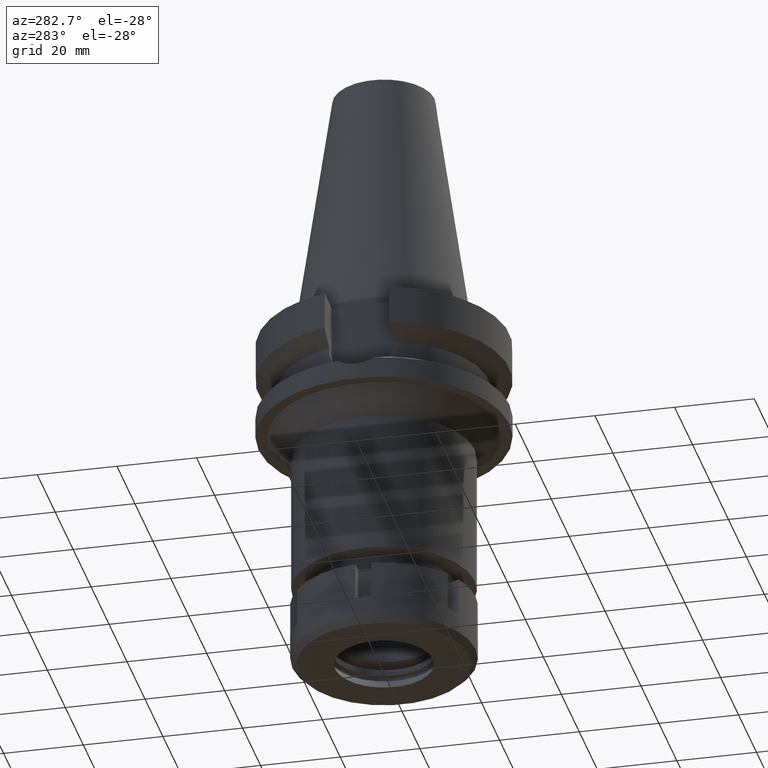
[diagram: clean part render]
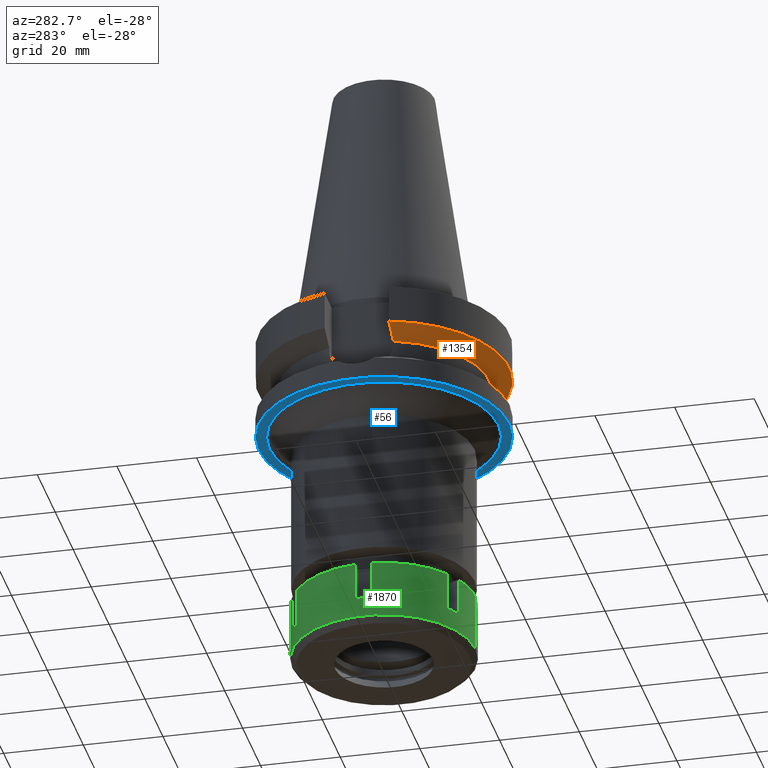
[diagram: same view with three faces highlighted in distinct colors, each labeled with its STEP entity id]
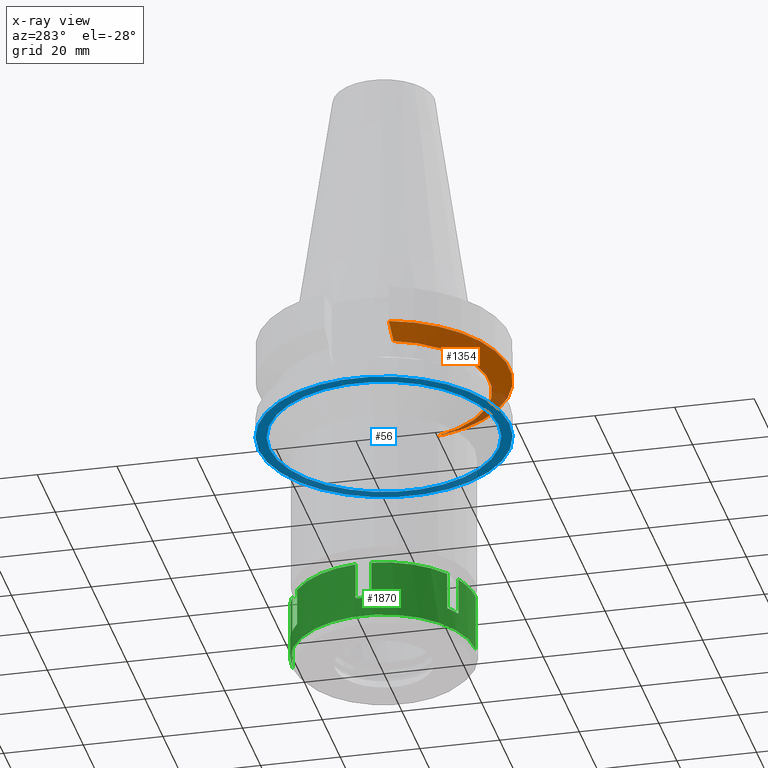
[diagram: x-ray of the same camera — body ghosted, the three highlighted faces saturated]
A machine part, auxiliary view with three faces highlighted in distinct colors.
The next image is the same camera in x-ray (body ghosted, the three faces saturated) — at least one of them is partly hidden behind the body in this view.
Their STEP definitions:

[orange] entity #1354 — the highlighted conical surface has half-angle 60 deg.
#33 = VERTEX_POINT ( 'NONE', #2276 ) ;
#57 = CARTESIAN_POINT ( 'NONE',  ( 30.45402272279000044, -8.049999999999000622, -11.56550565266999975 ) ) ;
#192 = CARTESIAN_POINT ( 'NONE',  ( -25.24772413243999836, -8.049995411938999368, -14.45229205738999845 ) ) ;
#216 = CIRCLE ( 'NONE', #2206, 31.50000000000000000 ) ;
#324 = CARTESIAN_POINT ( 'NONE',  ( 25.24772266958000344, -8.050000000000000711, -14.45225699861000024 ) ) ;
#397 = DIRECTION ( 'NONE',  ( 0.0000000000000000000, -1.000000000000000000, 0.0000000000000000000 ) ) ;
#398 = CIRCLE ( 'NONE', #452, 26.50000000000000711 ) ;
#402 = CARTESIAN_POINT ( 'NONE',  ( 0.0000000000000000000, 1.065333950388000029E-14, -13.00888132564000088 ) ) ;
#452 = AXIS2_PLACEMENT_3D ( 'NONE', #2230, #1123, #1888 ) ;
#638 = EDGE_CURVE ( 'NONE', #33, #652, #216, .T. ) ;
#652 = VERTEX_POINT ( 'NONE', #1758 ) ;
#745 = B_SPLINE_CURVE_WITH_KNOTS ( 'NONE', 3,
 ( #324, #2498, #1104, #57 ),
 .UNSPECIFIED., .F., .F.,
 ( 4, 4 ),
 ( 0.0000000000000000000, 1.000000000000000000 ),
 .UNSPECIFIED. ) ;
#767 = ORIENTED_EDGE ( 'NONE', *, *, #1991, .T. ) ;
#870 = VERTEX_POINT ( 'NONE', #2867 ) ;
#899 = FACE_OUTER_BOUND ( 'NONE', #3270, .T. ) ;
#1092 = EDGE_CURVE ( 'NONE', #1648, #652, #745, .T. ) ;
#1104 = CARTESIAN_POINT ( 'NONE',  ( 28.57294939171208625, -8.050008288737513951, -12.61547997194311499 ) ) ;
#1123 = DIRECTION ( 'NONE',  ( 0.0000000000000000000, 0.0000000000000000000, -1.000000000000000000 ) ) ;
#1189 = EDGE_CURVE ( 'NONE', #1648, #870, #398, .T. ) ;
#1354 = ADVANCED_FACE ( 'NONE', ( #899 ), #3305, .T. ) ;
#1421 = B_SPLINE_CURVE_WITH_KNOTS ( 'NONE', 3,
 ( #2335, #1574, #2938, #192 ),
 .UNSPECIFIED., .F., .F.,
 ( 4, 4 ),
 ( 0.0000000000000000000, 1.000000000000000000 ),
 .UNSPECIFIED. ) ;
#1470 = AXIS2_PLACEMENT_3D ( 'NONE', #402, #2271, #3349 ) ;
#1574 = CARTESIAN_POINT ( 'NONE',  ( -28.57292324736876310, -8.049998554312644217, -12.61549607974548515 ) ) ;
#1648 = VERTEX_POINT ( 'NONE', #2874 ) ;
#1758 = CARTESIAN_POINT ( 'NONE',  ( 30.45402272279000044, -8.049999999999000622, -11.56550565266999975 ) ) ;
#1879 = ORIENTED_EDGE ( 'NONE', *, *, #638, .F. ) ;
#1888 = DIRECTION ( 'NONE',  ( 0.9527442516822307583, -0.3037735849057093818, 0.0000000000000000000 ) ) ;
#1991 = EDGE_CURVE ( 'NONE', #33, #870, #1421, .T. ) ;
#2029 = CARTESIAN_POINT ( 'NONE',  ( 0.0000000000000000000, 1.065333950388000029E-14, -11.56550565266999975 ) ) ;
#2206 = AXIS2_PLACEMENT_3D ( 'NONE', #2029, #3364, #397 ) ;
#2230 = CARTESIAN_POINT ( 'NONE',  ( 0.0000000000000000000, 1.065333950388000029E-14, -14.45225699861000024 ) ) ;
#2271 = DIRECTION ( 'NONE',  ( 0.0000000000000000000, 0.0000000000000000000, 1.000000000000000000 ) ) ;
#2276 = CARTESIAN_POINT ( 'NONE',  ( -30.45402291398000116, -8.049999276686000016, -11.56551216739999965 ) ) ;
#2335 = CARTESIAN_POINT ( 'NONE',  ( -30.45402291398000116, -8.049999276686000016, -11.56551216739999965 ) ) ;
#2498 = CARTESIAN_POINT ( 'NONE',  ( 26.83757717483267413, -8.050003168525861952, -13.57772972348226936 ) ) ;
#2573 = ORIENTED_EDGE ( 'NONE', *, *, #1189, .F. ) ;
#2867 = CARTESIAN_POINT ( 'NONE',  ( -25.24772413243999836, -8.049995411938999368, -14.45229205738999845 ) ) ;
#2874 = CARTESIAN_POINT ( 'NONE',  ( 25.24772266958000344, -8.050000000000000711, -14.45225699861000024 ) ) ;
#2938 = CARTESIAN_POINT ( 'NONE',  ( -26.83754611517465705, -8.049990813718032712, -13.57774890706494908 ) ) ;
#2998 = ORIENTED_EDGE ( 'NONE', *, *, #1092, .T. ) ;
#3270 = EDGE_LOOP ( 'NONE', ( #767, #2573, #2998, #1879 ) ) ;
#3305 = CONICAL_SURFACE ( 'NONE', #1470, 29.00000000000000000, 1.047197551196400456 ) ;
#3349 = DIRECTION ( 'NONE',  ( 0.0000000000000000000, 1.000000000000000000, 0.0000000000000000000 ) ) ;
#3364 = DIRECTION ( 'NONE',  ( 0.0000000000000000000, 0.0000000000000000000, 1.000000000000000000 ) ) ;

[blue] entity #56 — the highlighted planar face has unit normal (0, 0, -1).
#56 = ADVANCED_FACE ( 'NONE', ( #2873, #2234 ), #978, .T. ) ;
#67 = DIRECTION ( 'NONE',  ( 0.0000000000000000000, 1.000000000000000000, 0.0000000000000000000 ) ) ;
#79 = EDGE_LOOP ( 'NONE', ( #2676, #2907 ) ) ;
#254 = AXIS2_PLACEMENT_3D ( 'NONE', #2681, #797, #3259 ) ;
#328 = CARTESIAN_POINT ( 'NONE',  ( 0.0000000000000000000, 0.0000000000000000000, -27.00000000000000000 ) ) ;
#345 = DIRECTION ( 'NONE',  ( 0.0000000000000000000, 0.0000000000000000000, -1.000000000000000000 ) ) ;
#393 = VERTEX_POINT ( 'NONE', #2471 ) ;
#694 = VERTEX_POINT ( 'NONE', #2616 ) ;
#797 = DIRECTION ( 'NONE',  ( 0.0000000000000000000, 0.0000000000000000000, 1.000000000000000000 ) ) ;
#918 = CARTESIAN_POINT ( 'NONE',  ( 0.0000000000000000000, 31.50000000000000000, -27.00000000000000000 ) ) ;
#942 = DIRECTION ( 'NONE',  ( 0.0000000000000000000, 0.0000000000000000000, -1.000000000000000000 ) ) ;
#978 = PLANE ( 'NONE',  #2429 ) ;
#1136 = EDGE_LOOP ( 'NONE', ( #3450, #3515 ) ) ;
#1159 = DIRECTION ( 'NONE',  ( 0.0000000000000000000, -1.000000000000000000, 0.0000000000000000000 ) ) ;
#1229 = AXIS2_PLACEMENT_3D ( 'NONE', #2286, #942, #67 ) ;
#1267 = AXIS2_PLACEMENT_3D ( 'NONE', #3333, #345, #1159 ) ;
#1710 = DIRECTION ( 'NONE',  ( 0.0000000000000000000, 0.0000000000000000000, -1.000000000000000000 ) ) ;
#1768 = CARTESIAN_POINT ( 'NONE',  ( 0.0000000000000000000, 2.115822274886999895E-14, -27.00000000000000000 ) ) ;
#1830 = EDGE_CURVE ( 'NONE', #2980, #694, #1856, .T. ) ;
#1840 = CIRCLE ( 'NONE', #254, 31.50000000000000000 ) ;
#1856 = CIRCLE ( 'NONE', #1229, 28.75000000000000000 ) ;
#2020 = CIRCLE ( 'NONE', #1267, 28.75000000000000000 ) ;
#2234 = FACE_BOUND ( 'NONE', #1136, .T. ) ;
#2286 = CARTESIAN_POINT ( 'NONE',  ( 0.0000000000000000000, 0.0000000000000000000, -27.00000000000000000 ) ) ;
#2429 = AXIS2_PLACEMENT_3D ( 'NONE', #328, #1710, #2811 ) ;
#2466 = EDGE_CURVE ( 'NONE', #3506, #393, #2644, .T. ) ;
#2471 = CARTESIAN_POINT ( 'NONE',  ( 0.0000000000000000000, -31.50000000000000000, -27.00000000000000000 ) ) ;
#2616 = CARTESIAN_POINT ( 'NONE',  ( 0.0000000000000000000, -28.75000000000000000, -27.00000000000000000 ) ) ;
#2644 = CIRCLE ( 'NONE', #3447, 31.50000000000000000 ) ;
#2676 = ORIENTED_EDGE ( 'NONE', *, *, #2466, .F. ) ;
#2681 = CARTESIAN_POINT ( 'NONE',  ( 0.0000000000000000000, 2.115822274886999895E-14, -27.00000000000000000 ) ) ;
#2803 = EDGE_CURVE ( 'NONE', #694, #2980, #2020, .T. ) ;
#2811 = DIRECTION ( 'NONE',  ( 0.0000000000000000000, -1.000000000000000000, 0.0000000000000000000 ) ) ;
#2868 = DIRECTION ( 'NONE',  ( 0.0000000000000000000, 0.0000000000000000000, 1.000000000000000000 ) ) ;
#2873 = FACE_OUTER_BOUND ( 'NONE', #79, .T. ) ;
#2881 = DIRECTION ( 'NONE',  ( 0.0000000000000000000, 1.000000000000000000, 0.0000000000000000000 ) ) ;
#2907 = ORIENTED_EDGE ( 'NONE', *, *, #3213, .F. ) ;
#2980 = VERTEX_POINT ( 'NONE', #3045 ) ;
#3045 = CARTESIAN_POINT ( 'NONE',  ( 0.0000000000000000000, 28.75000000000000000, -27.00000000000000000 ) ) ;
#3213 = EDGE_CURVE ( 'NONE', #393, #3506, #1840, .T. ) ;
#3259 = DIRECTION ( 'NONE',  ( 0.0000000000000000000, -1.000000000000000000, 0.0000000000000000000 ) ) ;
#3333 = CARTESIAN_POINT ( 'NONE',  ( 0.0000000000000000000, 0.0000000000000000000, -27.00000000000000000 ) ) ;
#3447 = AXIS2_PLACEMENT_3D ( 'NONE', #1768, #2868, #2881 ) ;
#3450 = ORIENTED_EDGE ( 'NONE', *, *, #1830, .F. ) ;
#3506 = VERTEX_POINT ( 'NONE', #918 ) ;
#3515 = ORIENTED_EDGE ( 'NONE', *, *, #2803, .F. ) ;

[green] entity #1870 — the highlighted cylindrical surface (partial cylindrical patch) has radius 23 mm, axis along (0, 0, -1).
#13 = VERTEX_POINT ( 'NONE', #585 ) ;
#15 = ORIENTED_EDGE ( 'NONE', *, *, #2732, .F. ) ;
#30 = DIRECTION ( 'NONE',  ( 0.0000000000000000000, 0.0000000000000000000, -1.000000000000000000 ) ) ;
#63 = EDGE_CURVE ( 'NONE', #169, #2299, #1459, .T. ) ;
#85 = CARTESIAN_POINT ( 'NONE',  ( 0.0000000000000000000, 23.00000000000000000, 0.0000000000000000000 ) ) ;
#100 = CARTESIAN_POINT ( 'NONE',  ( -22.91287847478000117, -2.000000000000000000, -9.500000000000000000 ) ) ;
#149 = VERTEX_POINT ( 'NONE', #100 ) ;
#162 = EDGE_CURVE ( 'NONE', #1514, #1282, #2371, .T. ) ;
#166 = CARTESIAN_POINT ( 'NONE',  ( 0.0000000000000000000, 0.0000000000000000000, 0.0000000000000000000 ) ) ;
#169 = VERTEX_POINT ( 'NONE', #3353 ) ;
#194 = CARTESIAN_POINT ( 'NONE',  ( -9.724388429820001178, 20.84313483297999881, 0.0000000000000000000 ) ) ;
#196 = VERTEX_POINT ( 'NONE', #3464 ) ;
#297 = CARTESIAN_POINT ( 'NONE',  ( 0.0000000000000000000, 0.0000000000000000000, -9.500000000000000000 ) ) ;
#307 = AXIS2_PLACEMENT_3D ( 'NONE', #693, #2070, #3173 ) ;
#326 = DIRECTION ( 'NONE',  ( -0.5734126106504978670, 0.8192667318687978373, 0.0000000000000000000 ) ) ;
#327 = CARTESIAN_POINT ( 'NONE',  ( -13.18849004495999999, 18.84313483298000236, -9.500000000000000000 ) ) ;
#329 = ORIENTED_EDGE ( 'NONE', *, *, #2456, .T. ) ;
#338 = EDGE_CURVE ( 'NONE', #1514, #2577, #2129, .T. ) ;
#344 = DIRECTION ( 'NONE',  ( 0.0000000000000000000, 0.0000000000000000000, -1.000000000000000000 ) ) ;
#366 = EDGE_CURVE ( 'NONE', #2369, #196, #3233, .T. ) ;
#380 = EDGE_CURVE ( 'NONE', #149, #1759, #1743, .T. ) ;
#411 = ORIENTED_EDGE ( 'NONE', *, *, #1670, .F. ) ;
#428 = CIRCLE ( 'NONE', #2823, 23.00000000000000000 ) ;
#450 = DIRECTION ( 'NONE',  ( -0.9962121075990957308, 0.08695652173912968297, 0.0000000000000000000 ) ) ;
#453 = ORIENTED_EDGE ( 'NONE', *, *, #1875, .T. ) ;
#457 = CARTESIAN_POINT ( 'NONE',  ( -22.91287847478000117, 2.000000000000000000, -9.500000000000000000 ) ) ;
#486 = DIRECTION ( 'NONE',  ( 0.0000000000000000000, 0.0000000000000000000, -1.000000000000000000 ) ) ;
#585 = CARTESIAN_POINT ( 'NONE',  ( 0.0000000000000000000, -23.00000000000000000, 0.0000000000000000000 ) ) ;
#586 = CARTESIAN_POINT ( 'NONE',  ( -22.91287847478000117, -2.000000000000000000, 0.0000000000000000000 ) ) ;
#605 = LINE ( 'NONE', #1722, #2557 ) ;
#628 = CARTESIAN_POINT ( 'NONE',  ( -9.724388429823001445, -20.84313483297999881, -9.500000000000000000 ) ) ;
#655 = VERTEX_POINT ( 'NONE', #2839 ) ;
#667 = VERTEX_POINT ( 'NONE', #1170 ) ;
#679 = LINE ( 'NONE', #85, #2888 ) ;
#693 = CARTESIAN_POINT ( 'NONE',  ( 0.0000000000000000000, 0.0000000000000000000, 0.0000000000000000000 ) ) ;
#704 = CARTESIAN_POINT ( 'NONE',  ( -9.724388429823001445, -20.84313483297999881, 0.0000000000000000000 ) ) ;
#816 = VERTEX_POINT ( 'NONE', #2578 ) ;
#852 = DIRECTION ( 'NONE',  ( 0.0000000000000000000, 0.0000000000000000000, 1.000000000000000000 ) ) ;
#1006 = VECTOR ( 'NONE', #3285, 1000.000000000000000 ) ;
#1015 = CARTESIAN_POINT ( 'NONE',  ( -13.18849004495999999, -18.84313483298000236, 0.0000000000000000000 ) ) ;
#1035 = ORIENTED_EDGE ( 'NONE', *, *, #1504, .F. ) ;
#1074 = CARTESIAN_POINT ( 'NONE',  ( 0.0000000000000000000, 0.0000000000000000000, -14.50000000000000000 ) ) ;
#1081 = EDGE_CURVE ( 'NONE', #1740, #1429, #1978, .T. ) ;
#1107 = CARTESIAN_POINT ( 'NONE',  ( 0.0000000000000000000, 0.0000000000000000000, 0.0000000000000000000 ) ) ;
#1115 = AXIS2_PLACEMENT_3D ( 'NONE', #1716, #2550, #2528 ) ;
#1169 = CYLINDRICAL_SURFACE ( 'NONE', #1115, 23.00000000000000000 ) ;
#1170 = CARTESIAN_POINT ( 'NONE',  ( 0.0000000000000000000, 23.00000000000000000, -14.50000000000000000 ) ) ;
#1177 = CIRCLE ( 'NONE', #307, 23.00000000000000355 ) ;
#1182 = CARTESIAN_POINT ( 'NONE',  ( 0.0000000000000000000, 0.0000000000000000000, -9.500000000000000000 ) ) ;
#1197 = CARTESIAN_POINT ( 'NONE',  ( -13.18849004495999999, -18.84313483298000236, -9.500000000000000000 ) ) ;
#1282 = VERTEX_POINT ( 'NONE', #1197 ) ;
#1301 = LINE ( 'NONE', #2399, #2854 ) ;
#1403 = DIRECTION ( 'NONE',  ( 0.0000000000000000000, -1.000000000000000000, 0.0000000000000000000 ) ) ;
#1405 = DIRECTION ( 'NONE',  ( 0.0000000000000000000, 0.0000000000000000000, -1.000000000000000000 ) ) ;
#1429 = VERTEX_POINT ( 'NONE', #586 ) ;
#1459 = CIRCLE ( 'NONE', #2949, 23.00000000000000355 ) ;
#1469 = CARTESIAN_POINT ( 'NONE',  ( -9.724388429820001178, 20.84313483297999881, 0.0000000000000000000 ) ) ;
#1504 = EDGE_CURVE ( 'NONE', #13, #655, #605, .T. ) ;
#1514 = VERTEX_POINT ( 'NONE', #628 ) ;
#1586 = DIRECTION ( 'NONE',  ( 0.0000000000000000000, 1.000000000000000000, 0.0000000000000000000 ) ) ;
#1627 = VECTOR ( 'NONE', #2922, 1000.000000000000000 ) ;
#1666 = CARTESIAN_POINT ( 'NONE',  ( -22.91287847478000117, 2.000000000000000000, 0.0000000000000000000 ) ) ;
#1669 = ORIENTED_EDGE ( 'NONE', *, *, #3267, .F. ) ;
#1670 = EDGE_CURVE ( 'NONE', #1740, #1282, #1301, .T. ) ;
#1675 = ORIENTED_EDGE ( 'NONE', *, *, #2607, .T. ) ;
#1686 = AXIS2_PLACEMENT_3D ( 'NONE', #2717, #1687, #1957 ) ;
#1687 = DIRECTION ( 'NONE',  ( 0.0000000000000000000, 0.0000000000000000000, -1.000000000000000000 ) ) ;
#1690 = DIRECTION ( 'NONE',  ( 0.0000000000000000000, 0.0000000000000000000, -1.000000000000000000 ) ) ;
#1716 = CARTESIAN_POINT ( 'NONE',  ( 0.0000000000000000000, 0.0000000000000000000, 0.0000000000000000000 ) ) ;
#1722 = CARTESIAN_POINT ( 'NONE',  ( 0.0000000000000000000, -23.00000000000000000, 0.0000000000000000000 ) ) ;
#1729 = VECTOR ( 'NONE', #344, 1000.000000000000000 ) ;
#1740 = VERTEX_POINT ( 'NONE', #1015 ) ;
#1743 = CIRCLE ( 'NONE', #2204, 23.00000000000000355 ) ;
#1759 = VERTEX_POINT ( 'NONE', #457 ) ;
#1778 = ORIENTED_EDGE ( 'NONE', *, *, #1081, .T. ) ;
#1782 = VECTOR ( 'NONE', #3317, 1000.000000000000000 ) ;
#1826 = CARTESIAN_POINT ( 'NONE',  ( -9.724388429822001356, -20.84313483297999881, -9.500000000000000000 ) ) ;
#1870 = ADVANCED_FACE ( 'NONE', ( #1992 ), #1169, .T. ) ;
#1875 = EDGE_CURVE ( 'NONE', #3491, #667, #679, .T. ) ;
#1952 = CIRCLE ( 'NONE', #2819, 23.00000000000000000 ) ;
#1957 = DIRECTION ( 'NONE',  ( -0.5734126106503841802, -0.8192667318688773292, 0.0000000000000000000 ) ) ;
#1977 = DIRECTION ( 'NONE',  ( 0.0000000000000000000, 0.0000000000000000000, -1.000000000000000000 ) ) ;
#1978 = CIRCLE ( 'NONE', #1686, 22.99999999999999289 ) ;
#1992 = FACE_OUTER_BOUND ( 'NONE', #2235, .T. ) ;
#2019 = LINE ( 'NONE', #327, #1782 ) ;
#2070 = DIRECTION ( 'NONE',  ( 0.0000000000000000000, 0.0000000000000000000, -1.000000000000000000 ) ) ;
#2089 = CARTESIAN_POINT ( 'NONE',  ( -22.91287847478000117, -2.000000000000000000, -9.500000000000000000 ) ) ;
#2129 = LINE ( 'NONE', #1826, #1627 ) ;
#2204 = AXIS2_PLACEMENT_3D ( 'NONE', #297, #30, #3013 ) ;
#2221 = CARTESIAN_POINT ( 'NONE',  ( -13.18849004495999999, 18.84313483298000236, 0.0000000000000000000 ) ) ;
#2235 = EDGE_LOOP ( 'NONE', ( #2465, #329, #453, #1675, #1035, #3318, #2866, #3085, #411, #1778, #2851, #2589, #1669, #3288, #15, #3029 ) ) ;
#2299 = VERTEX_POINT ( 'NONE', #2221 ) ;
#2369 = VERTEX_POINT ( 'NONE', #1469 ) ;
#2371 = CIRCLE ( 'NONE', #2606, 23.00000000000001066 ) ;
#2399 = CARTESIAN_POINT ( 'NONE',  ( -13.18849004495999999, -18.84313483298000236, 0.0000000000000000000 ) ) ;
#2414 = AXIS2_PLACEMENT_3D ( 'NONE', #2768, #1690, #326 ) ;
#2456 = EDGE_CURVE ( 'NONE', #2369, #3491, #1177, .T. ) ;
#2465 = ORIENTED_EDGE ( 'NONE', *, *, #366, .F. ) ;
#2502 = DIRECTION ( 'NONE',  ( -0.4227994969487938182, -0.9062232536079875000, 0.0000000000000000000 ) ) ;
#2528 = DIRECTION ( 'NONE',  ( 0.0000000000000000000, -1.000000000000000000, 0.0000000000000000000 ) ) ;
#2550 = DIRECTION ( 'NONE',  ( 0.0000000000000000000, 0.0000000000000000000, -1.000000000000000000 ) ) ;
#2557 = VECTOR ( 'NONE', #1977, 1000.000000000000000 ) ;
#2577 = VERTEX_POINT ( 'NONE', #704 ) ;
#2578 = CARTESIAN_POINT ( 'NONE',  ( -13.18849004495999999, 18.84313483298000236, -9.500000000000000000 ) ) ;
#2589 = ORIENTED_EDGE ( 'NONE', *, *, #380, .T. ) ;
#2606 = AXIS2_PLACEMENT_3D ( 'NONE', #1182, #1405, #2502 ) ;
#2607 = EDGE_CURVE ( 'NONE', #667, #655, #1952, .T. ) ;
#2649 = CIRCLE ( 'NONE', #2414, 23.00000000000000355 ) ;
#2717 = CARTESIAN_POINT ( 'NONE',  ( 0.0000000000000000000, 0.0000000000000000000, 0.0000000000000000000 ) ) ;
#2732 = EDGE_CURVE ( 'NONE', #816, #2299, #2019, .T. ) ;
#2738 = DIRECTION ( 'NONE',  ( 0.0000000000000000000, 0.0000000000000000000, -1.000000000000000000 ) ) ;
#2768 = CARTESIAN_POINT ( 'NONE',  ( 0.0000000000000000000, 0.0000000000000000000, -9.500000000000000000 ) ) ;
#2819 = AXIS2_PLACEMENT_3D ( 'NONE', #1074, #852, #1586 ) ;
#2823 = AXIS2_PLACEMENT_3D ( 'NONE', #1107, #2738, #1403 ) ;
#2839 = CARTESIAN_POINT ( 'NONE',  ( 0.0000000000000000000, -23.00000000000000000, -14.50000000000000000 ) ) ;
#2851 = ORIENTED_EDGE ( 'NONE', *, *, #3108, .F. ) ;
#2854 = VECTOR ( 'NONE', #486, 1000.000000000000000 ) ;
#2866 = ORIENTED_EDGE ( 'NONE', *, *, #338, .F. ) ;
#2888 = VECTOR ( 'NONE', #3106, 1000.000000000000000 ) ;
#2904 = DIRECTION ( 'NONE',  ( 0.0000000000000000000, 0.0000000000000000000, 1.000000000000000000 ) ) ;
#2922 = DIRECTION ( 'NONE',  ( 0.0000000000000000000, 0.0000000000000000000, 1.000000000000000000 ) ) ;
#2949 = AXIS2_PLACEMENT_3D ( 'NONE', #166, #3446, #450 ) ;
#3013 = DIRECTION ( 'NONE',  ( -0.9962121075990957308, -0.08695652173912968297, 0.0000000000000000000 ) ) ;
#3029 = ORIENTED_EDGE ( 'NONE', *, *, #3307, .T. ) ;
#3082 = CARTESIAN_POINT ( 'NONE',  ( 0.0000000000000000000, 23.00000000000000000, 0.0000000000000000000 ) ) ;
#3085 = ORIENTED_EDGE ( 'NONE', *, *, #162, .T. ) ;
#3106 = DIRECTION ( 'NONE',  ( 0.0000000000000000000, 0.0000000000000000000, -1.000000000000000000 ) ) ;
#3108 = EDGE_CURVE ( 'NONE', #149, #1429, #3205, .T. ) ;
#3173 = DIRECTION ( 'NONE',  ( -0.4227994969487119392, 0.9062232536080258027, 0.0000000000000000000 ) ) ;
#3205 = LINE ( 'NONE', #2089, #3222 ) ;
#3222 = VECTOR ( 'NONE', #2904, 1000.000000000000000 ) ;
#3233 = LINE ( 'NONE', #194, #1006 ) ;
#3248 = EDGE_CURVE ( 'NONE', #13, #2577, #428, .T. ) ;
#3267 = EDGE_CURVE ( 'NONE', #169, #1759, #3316, .T. ) ;
#3285 = DIRECTION ( 'NONE',  ( 0.0000000000000000000, 0.0000000000000000000, -1.000000000000000000 ) ) ;
#3288 = ORIENTED_EDGE ( 'NONE', *, *, #63, .T. ) ;
#3307 = EDGE_CURVE ( 'NONE', #816, #196, #2649, .T. ) ;
#3316 = LINE ( 'NONE', #1666, #1729 ) ;
#3317 = DIRECTION ( 'NONE',  ( 0.0000000000000000000, 0.0000000000000000000, 1.000000000000000000 ) ) ;
#3318 = ORIENTED_EDGE ( 'NONE', *, *, #3248, .T. ) ;
#3353 = CARTESIAN_POINT ( 'NONE',  ( -22.91287847478000117, 2.000000000000000000, 0.0000000000000000000 ) ) ;
#3446 = DIRECTION ( 'NONE',  ( 0.0000000000000000000, 0.0000000000000000000, -1.000000000000000000 ) ) ;
#3464 = CARTESIAN_POINT ( 'NONE',  ( -9.724388429820001178, 20.84313483297999881, -9.500000000000000000 ) ) ;
#3491 = VERTEX_POINT ( 'NONE', #3082 ) ;